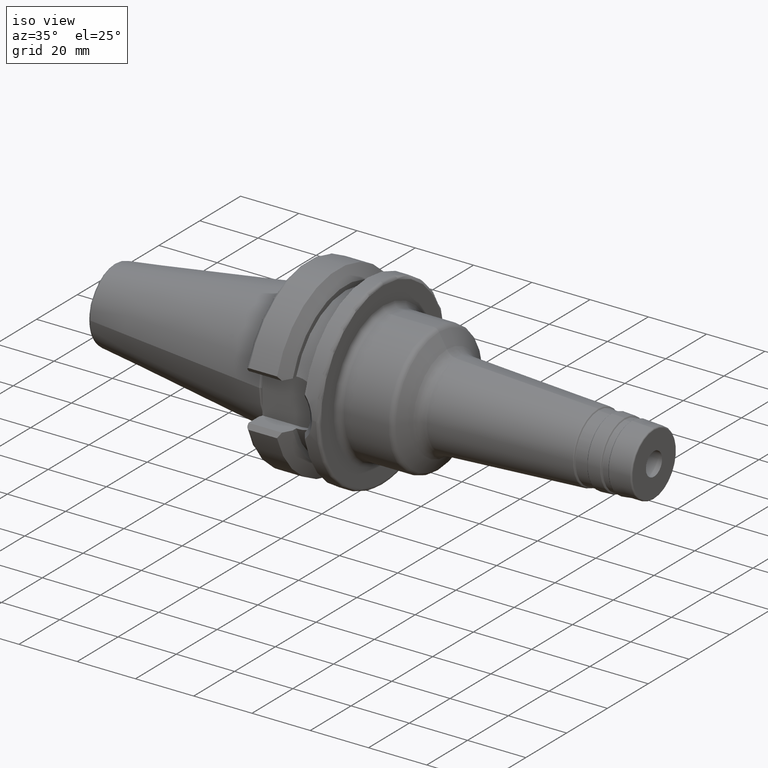
[diagram: clean part render]
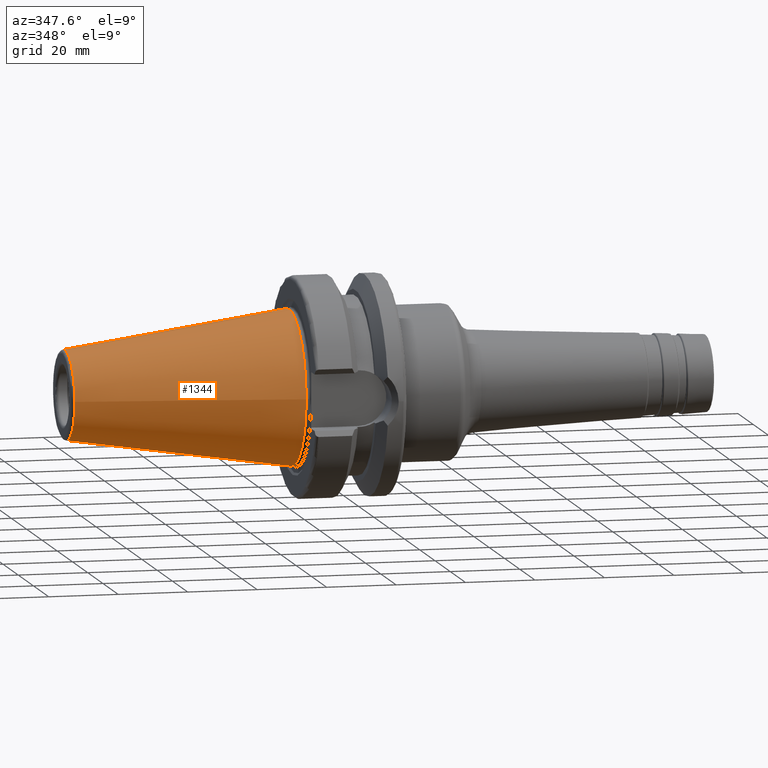
[diagram: tour spotlight — one face highlighted and labeled with its STEP entity id]
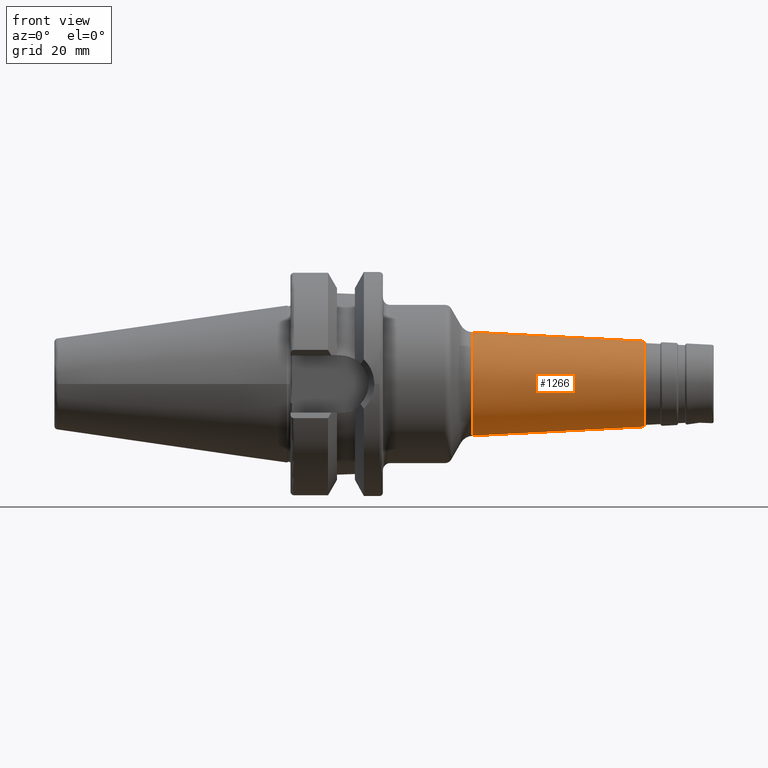
[diagram: tour spotlight — one face highlighted and labeled with its STEP entity id]
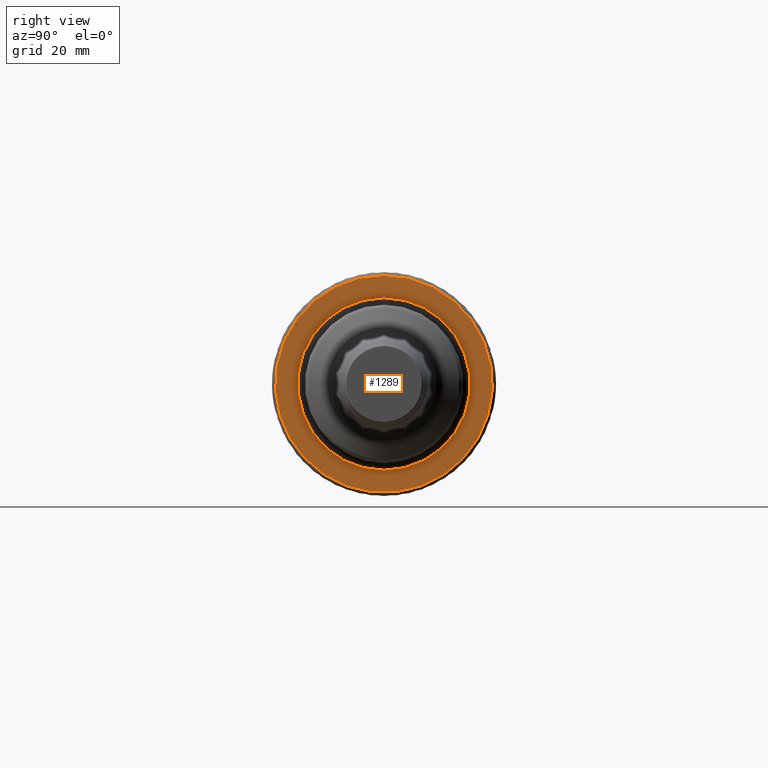
[diagram: tour spotlight — one face highlighted and labeled with its STEP entity id]
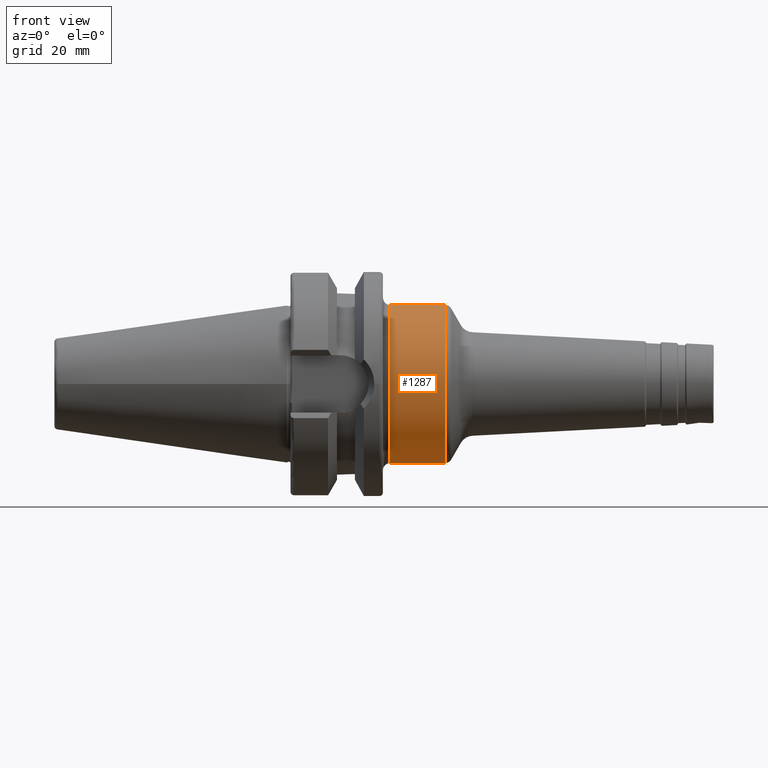
[diagram: tour spotlight — one face highlighted and labeled with its STEP entity id]
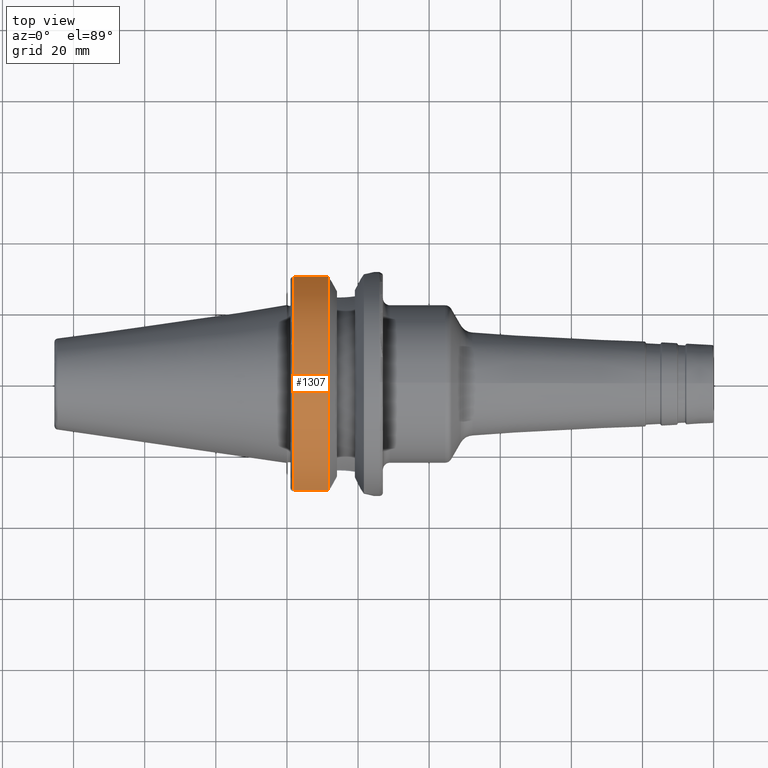
[diagram: tour spotlight — one face highlighted and labeled with its STEP entity id]
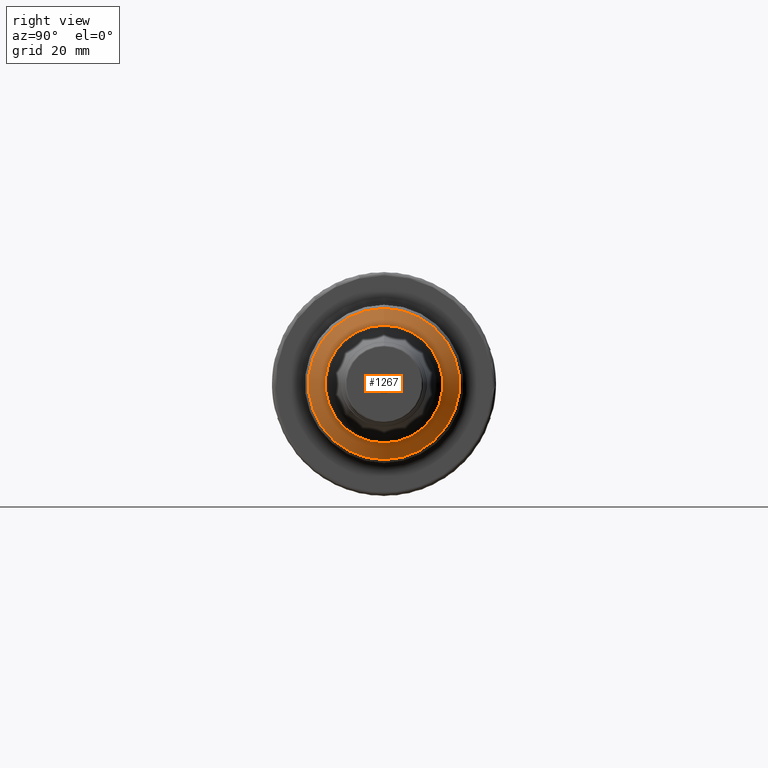
[diagram: tour spotlight — one face highlighted and labeled with its STEP entity id]
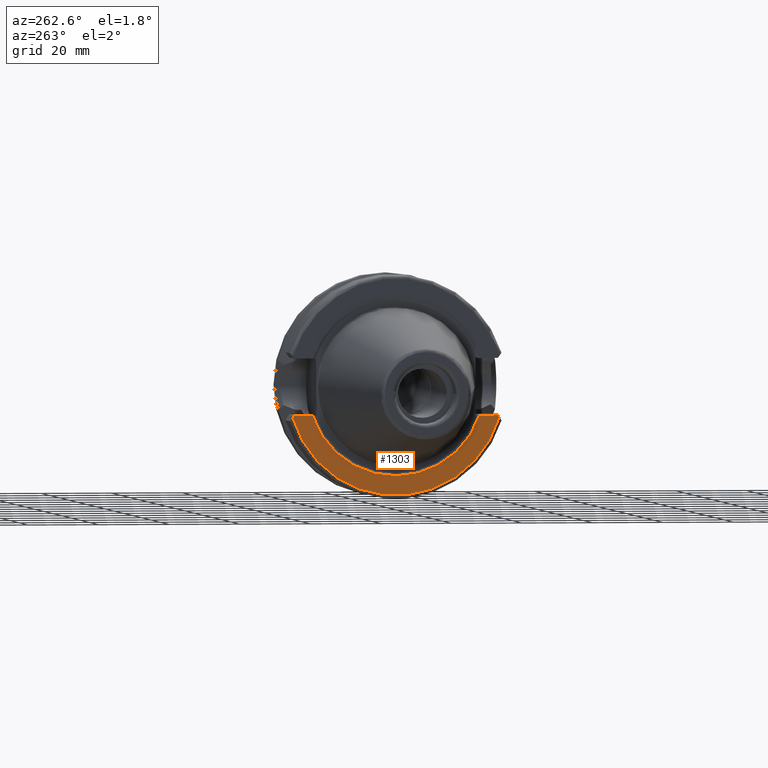
[diagram: tour spotlight — one face highlighted and labeled with its STEP entity id]
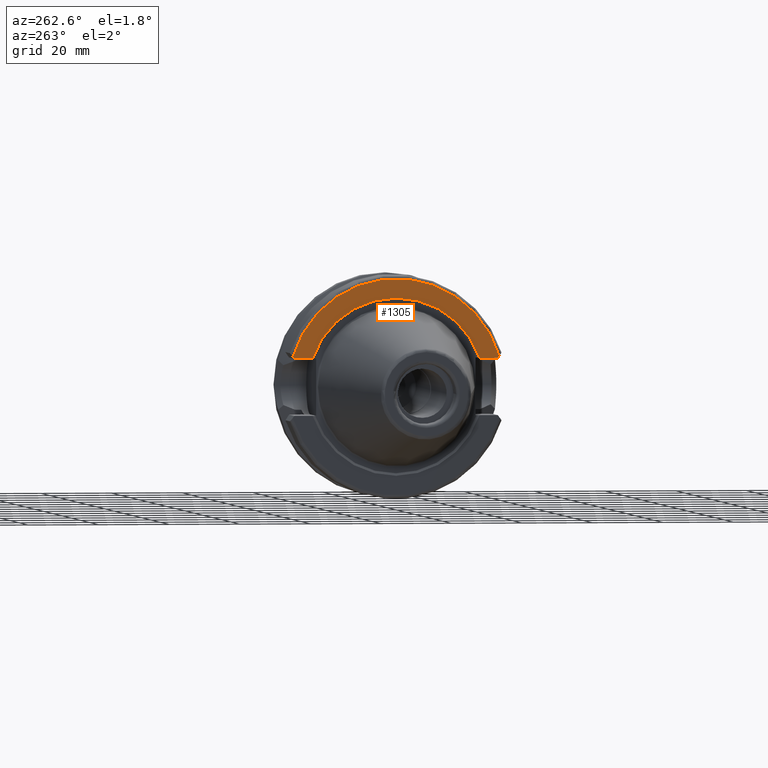
[diagram: tour spotlight — one face highlighted and labeled with its STEP entity id]
A machine part: a face-by-face anatomy tour. The part has 83 B-rep faces; the first image is the clean iso view, then the 8 largest visible faces are spotlighted one at a time (largest first), each with its STEP entity span.

Face 1 — auxiliary view, entity #1344. In plain terms, the highlighted conical surface has half-angle 8.297 deg.
Definition (entity closure, byte-faithful):
#165=LINE('',#2617,#236);
#236=VECTOR('',#1955,17.5186442890469);
#259=CONICAL_SURFACE('',#1538,17.5186442890469,0.144812498238939);
#340=FACE_OUTER_BOUND('',#429,.T.);
#429=EDGE_LOOP('',(#1226,#1227,#1228,#1229,#1230));
#520=CIRCLE('',#1535,12.8122885780937);
#521=CIRCLE('',#1536,12.8122885780937);
#523=CIRCLE('',#1539,22.225);
#644=VERTEX_POINT('',#2609);
#645=VERTEX_POINT('',#2610);
#646=VERTEX_POINT('',#2615);
#838=EDGE_CURVE('',#644,#645,#520,.T.);
#839=EDGE_CURVE('',#645,#644,#521,.T.);
#841=EDGE_CURVE('',#646,#646,#523,.T.);
#842=EDGE_CURVE('',#646,#644,#165,.T.);
#1226=ORIENTED_EDGE('',*,*,#841,.F.);
#1227=ORIENTED_EDGE('',*,*,#842,.T.);
#1228=ORIENTED_EDGE('',*,*,#838,.T.);
#1229=ORIENTED_EDGE('',*,*,#839,.T.);
#1230=ORIENTED_EDGE('',*,*,#842,.F.);
#1344=ADVANCED_FACE('',(#340),#259,.T.);
#1535=AXIS2_PLACEMENT_3D('',#2611,#1945,#1946);
#1536=AXIS2_PLACEMENT_3D('',#2612,#1947,#1948);
#1538=AXIS2_PLACEMENT_3D('',#2614,#1951,#1952);
#1539=AXIS2_PLACEMENT_3D('',#2616,#1953,#1954);
#1945=DIRECTION('center_axis',(1.,0.,0.));
#1946=DIRECTION('ref_axis',(0.,0.,-1.));
#1947=DIRECTION('center_axis',(1.,0.,0.));
#1948=DIRECTION('ref_axis',(0.,0.,-1.));
#1951=DIRECTION('center_axis',(1.,0.,0.));
#1952=DIRECTION('ref_axis',(0.,1.,0.));
#1953=DIRECTION('center_axis',(1.,0.,0.));
#1954=DIRECTION('ref_axis',(0.,0.,-1.));
#1955=DIRECTION('',(-0.989532981063281,0.144306893071729,1.76724974695192E-17));
#2609=CARTESIAN_POINT('',(-64.5443068930717,-12.8122885780937,-1.56905281969147E-15));
#2610=CARTESIAN_POINT('',(-64.5443068930717,-1.56905281969147E-15,12.8122885780937));
#2611=CARTESIAN_POINT('Origin',(-64.5443068930717,0.,0.));
#2612=CARTESIAN_POINT('Origin',(-64.5443068930717,0.,0.));
#2614=CARTESIAN_POINT('Origin',(-32.2721534465359,0.,0.));
#2615=CARTESIAN_POINT('',(4.44089209850063E-15,-22.225,-2.72177751110499E-15));
#2616=CARTESIAN_POINT('Origin',(0.,0.,0.));
#2617=CARTESIAN_POINT('',(-32.2721534465359,-17.5186442890469,-2.14541516539823E-15));

Face 2 — front view, entity #1266. In plain terms, the highlighted conical surface has half-angle 3 deg.
Definition (entity closure, byte-faithful):
#97=LINE('',#1982,#168);
#168=VECTOR('',#1561,13.3386194931702);
#239=CONICAL_SURFACE('',#1375,13.3386194931702,0.0523598775598296);
#262=FACE_OUTER_BOUND('',#345,.T.);
#345=EDGE_LOOP('',(#853,#854,#855,#856));
#435=CIRCLE('',#1374,14.5548801268603);
#436=CIRCLE('',#1376,12.0207809078977);
#529=VERTEX_POINT('',#1976);
#530=VERTEX_POINT('',#1980);
#652=EDGE_CURVE('',#529,#529,#435,.T.);
#653=EDGE_CURVE('',#530,#530,#436,.T.);
#654=EDGE_CURVE('',#530,#529,#97,.T.);
#853=ORIENTED_EDGE('',*,*,#653,.F.);
#854=ORIENTED_EDGE('',*,*,#654,.T.);
#855=ORIENTED_EDGE('',*,*,#652,.F.);
#856=ORIENTED_EDGE('',*,*,#654,.F.);
#1266=ADVANCED_FACE('',(#262),#239,.T.);
#1374=AXIS2_PLACEMENT_3D('',#1978,#1555,#1556);
#1375=AXIS2_PLACEMENT_3D('',#1979,#1557,#1558);
#1376=AXIS2_PLACEMENT_3D('',#1981,#1559,#1560);
#1555=DIRECTION('center_axis',(-1.,0.,0.));
#1556=DIRECTION('ref_axis',(0.,0.,1.));
#1557=DIRECTION('center_axis',(-1.,0.,0.));
#1558=DIRECTION('ref_axis',(0.,0.,-1.));
#1559=DIRECTION('center_axis',(1.,0.,0.));
#1560=DIRECTION('ref_axis',(0.,0.,1.));
#1561=DIRECTION('',(-0.998629534754574,-6.40930612932367E-18,0.0523359562429435));
#1976=CARTESIAN_POINT('',(52.1688463908891,-1.78245873593329E-15,14.5548801268603));
#1978=CARTESIAN_POINT('Origin',(52.1688463908891,-1.78245873593329E-15,
0.));
#1979=CARTESIAN_POINT('Origin',(75.3764817902328,0.,0.));
#1980=CARTESIAN_POINT('',(100.522339968181,-1.47212108621085E-15,12.0207809078977));
#1981=CARTESIAN_POINT('Origin',(100.522339968181,-1.47212108621085E-15,
0.));
#1982=CARTESIAN_POINT('',(75.3764817902328,-1.63350976673554E-15,13.3386194931702));

Face 3 — right view, entity #1289. In plain terms, the highlighted planar face has unit normal (1, 0, 0).
Definition (entity closure, byte-faithful):
#68=FACE_BOUND('',#370,.T.);
#74=PLANE('',#1433);
#285=FACE_OUTER_BOUND('',#369,.T.);
#369=EDGE_LOOP('',(#945));
#370=EDGE_LOOP('',(#946));
#470=CIRCLE('',#1432,24.25);
#471=CIRCLE('',#1434,30.5);
#553=VERTEX_POINT('',#2069);
#554=VERTEX_POINT('',#2073);
#698=EDGE_CURVE('',#553,#553,#470,.T.);
#699=EDGE_CURVE('',#554,#554,#471,.T.);
#945=ORIENTED_EDGE('',*,*,#699,.T.);
#946=ORIENTED_EDGE('',*,*,#698,.F.);
#1289=ADVANCED_FACE('',(#285,#68),#74,.T.);
#1432=AXIS2_PLACEMENT_3D('',#2071,#1682,#1683);
#1433=AXIS2_PLACEMENT_3D('',#2072,#1684,#1685);
#1434=AXIS2_PLACEMENT_3D('',#2074,#1686,#1687);
#1682=DIRECTION('center_axis',(1.,0.,0.));
#1683=DIRECTION('ref_axis',(0.,-1.22464679914735E-16,1.));
#1684=DIRECTION('center_axis',(1.,0.,0.));
#1685=DIRECTION('ref_axis',(0.,0.,-1.));
#1686=DIRECTION('center_axis',(1.,0.,0.));
#1687=DIRECTION('ref_axis',(0.,0.,-1.));
#2069=CARTESIAN_POINT('',(27.,5.93953697586466E-15,-24.25));
#2071=CARTESIAN_POINT('Origin',(27.,0.,0.));
#2072=CARTESIAN_POINT('Origin',(27.,0.,0.));
#2073=CARTESIAN_POINT('',(27.,-3.73517273739943E-15,30.5));
#2074=CARTESIAN_POINT('Origin',(27.,0.,0.));

Face 4 — front view, entity #1287. In plain terms, the highlighted cylindrical surface (bore or boss wall) has radius 22.25 mm, axis along (1, 0, 0).
Definition (entity closure, byte-faithful):
#50=CYLINDRICAL_SURFACE('',#1427,22.25);
#107=LINE('',#2064,#178);
#178=VECTOR('',#1673,22.25);
#283=FACE_OUTER_BOUND('',#367,.T.);
#367=EDGE_LOOP('',(#935,#936,#937,#938,#939));
#466=CIRCLE('',#1426,22.25);
#467=CIRCLE('',#1428,22.25);
#468=CIRCLE('',#1429,22.25);
#550=VERTEX_POINT('',#2059);
#551=VERTEX_POINT('',#2063);
#552=VERTEX_POINT('',#2065);
#693=EDGE_CURVE('',#550,#550,#466,.T.);
#694=EDGE_CURVE('',#550,#551,#107,.T.);
#695=EDGE_CURVE('',#552,#551,#467,.T.);
#696=EDGE_CURVE('',#551,#552,#468,.T.);
#935=ORIENTED_EDGE('',*,*,#693,.F.);
#936=ORIENTED_EDGE('',*,*,#694,.T.);
#937=ORIENTED_EDGE('',*,*,#695,.F.);
#938=ORIENTED_EDGE('',*,*,#696,.F.);
#939=ORIENTED_EDGE('',*,*,#694,.F.);
#1287=ADVANCED_FACE('',(#283),#50,.T.);
#1426=AXIS2_PLACEMENT_3D('',#2061,#1669,#1670);
#1427=AXIS2_PLACEMENT_3D('',#2062,#1671,#1672);
#1428=AXIS2_PLACEMENT_3D('',#2066,#1674,#1675);
#1429=AXIS2_PLACEMENT_3D('',#2067,#1676,#1677);
#1669=DIRECTION('center_axis',(1.,0.,0.));
#1670=DIRECTION('ref_axis',(0.,1.22464679914735E-16,1.));
#1671=DIRECTION('center_axis',(1.,0.,0.));
#1672=DIRECTION('ref_axis',(0.,0.,-1.));
#1673=DIRECTION('',(-1.,0.,0.));
#1674=DIRECTION('center_axis',(-1.,0.,0.));
#1675=DIRECTION('ref_axis',(0.,-1.22464679914735E-16,1.));
#1676=DIRECTION('center_axis',(-1.,0.,0.));
#1677=DIRECTION('ref_axis',(0.,-1.22464679914735E-16,1.));
#2059=CARTESIAN_POINT('',(44.4681441166061,-2.72483912810286E-15,22.25));
#2061=CARTESIAN_POINT('Origin',(44.4681441166061,0.,0.));
#2062=CARTESIAN_POINT('Origin',(36.3114223274927,0.,0.));
#2063=CARTESIAN_POINT('',(29.,-2.72483912810286E-15,22.25));
#2064=CARTESIAN_POINT('',(36.3114223274927,-2.72483912810286E-15,22.25));
#2065=CARTESIAN_POINT('',(29.,0.,-22.25));
#2066=CARTESIAN_POINT('Origin',(29.,0.,0.));
#2067=CARTESIAN_POINT('Origin',(29.,0.,0.));

Face 5 — top view, entity #1307. In plain terms, the highlighted cylindrical surface (partial cylindrical patch) has radius 31.5 mm, axis along (1, 0, 0).
Definition (entity closure, byte-faithful):
#57=CYLINDRICAL_SURFACE('',#1471,31.5);
#121=LINE('',#2297,#192);
#127=LINE('',#2338,#198);
#192=VECTOR('',#1763,10.);
#198=VECTOR('',#1783,10.);
#303=FACE_OUTER_BOUND('',#390,.T.);
#390=EDGE_LOOP('',(#1027,#1028,#1029,#1030));
#491=CIRCLE('',#1470,31.5);
#492=CIRCLE('',#1472,31.5000000000001);
#587=VERTEX_POINT('',#2292);
#588=VERTEX_POINT('',#2296);
#595=VERTEX_POINT('',#2323);
#596=VERTEX_POINT('',#2336);
#743=EDGE_CURVE('',#587,#588,#121,.T.);
#752=EDGE_CURVE('',#595,#588,#491,.T.);
#754=EDGE_CURVE('',#596,#587,#492,.T.);
#755=EDGE_CURVE('',#595,#596,#127,.T.);
#1027=ORIENTED_EDGE('',*,*,#743,.F.);
#1028=ORIENTED_EDGE('',*,*,#754,.F.);
#1029=ORIENTED_EDGE('',*,*,#755,.F.);
#1030=ORIENTED_EDGE('',*,*,#752,.T.);
#1307=ADVANCED_FACE('',(#303),#57,.T.);
#1470=AXIS2_PLACEMENT_3D('',#2324,#1777,#1778);
#1471=AXIS2_PLACEMENT_3D('',#2335,#1779,#1780);
#1472=AXIS2_PLACEMENT_3D('',#2337,#1781,#1782);
#1763=DIRECTION('',(-1.,0.,0.));
#1777=DIRECTION('center_axis',(1.,0.,0.));
#1778=DIRECTION('ref_axis',(0.,0.,-1.));
#1779=DIRECTION('center_axis',(1.,0.,0.));
#1780=DIRECTION('ref_axis',(0.,1.,0.));
#1781=DIRECTION('center_axis',(1.,0.,0.));
#1782=DIRECTION('ref_axis',(0.,0.,-1.));
#1783=DIRECTION('',(1.,0.,0.));
#2292=CARTESIAN_POINT('',(11.5690363073381,-30.0059801089944,9.58598757033588));
#2296=CARTESIAN_POINT('',(1.99999999999999,-30.0059801089944,9.58598757033586));
#2297=CARTESIAN_POINT('',(6.78451815366905,-30.0059801089944,9.58598757033587));
#2323=CARTESIAN_POINT('',(1.99999999999999,30.0059801089944,9.58598757033586));
#2324=CARTESIAN_POINT('Origin',(1.99999999999999,0.,0.));
#2335=CARTESIAN_POINT('Origin',(6.78451815366905,0.,0.));
#2336=CARTESIAN_POINT('',(11.5690363073381,30.0059801089944,9.58598757033588));
#2337=CARTESIAN_POINT('Origin',(11.5690363073381,0.,0.));
#2338=CARTESIAN_POINT('',(6.78451815366905,30.0059801089944,9.58598757033587));

Face 6 — right view, entity #1267. In plain terms, the highlighted conical surface has half-angle 60 deg.
Definition (entity closure, byte-faithful):
#98=LINE('',#1985,#169);
#169=VECTOR('',#1564,18.4592722749064);
#240=CONICAL_SURFACE('',#1377,18.4592722749064,1.0471975511966);
#263=FACE_OUTER_BOUND('',#346,.T.);
#346=EDGE_LOOP('',(#857,#858,#859,#860));
#433=CIRCLE('',#1372,16.5493982658786);
#437=CIRCLE('',#1378,21.25);
#528=VERTEX_POINT('',#1974);
#531=VERTEX_POINT('',#1984);
#650=EDGE_CURVE('',#528,#528,#433,.T.);
#655=EDGE_CURVE('',#528,#531,#98,.T.);
#656=EDGE_CURVE('',#531,#531,#437,.T.);
#857=ORIENTED_EDGE('',*,*,#650,.F.);
#858=ORIENTED_EDGE('',*,*,#655,.T.);
#859=ORIENTED_EDGE('',*,*,#656,.F.);
#860=ORIENTED_EDGE('',*,*,#655,.F.);
#1267=ADVANCED_FACE('',(#263),#240,.T.);
#1372=AXIS2_PLACEMENT_3D('',#1975,#1551,#1552);
#1377=AXIS2_PLACEMENT_3D('',#1983,#1562,#1563);
#1378=AXIS2_PLACEMENT_3D('',#1986,#1565,#1566);
#1551=DIRECTION('center_axis',(1.,0.,0.));
#1552=DIRECTION('ref_axis',(0.,0.,1.));
#1562=DIRECTION('center_axis',(-1.,0.,0.));
#1563=DIRECTION('ref_axis',(0.,0.,-1.));
#1564=DIRECTION('',(-0.5,-1.06057523872491E-16,0.866025403784439));
#1565=DIRECTION('center_axis',(-1.,0.,0.));
#1566=DIRECTION('ref_axis',(0.,0.,1.));
#1974=CARTESIAN_POINT('',(48.9140886007231,-2.0267167614123E-15,16.5493982658786));
#1975=CARTESIAN_POINT('Origin',(48.9140886007231,-2.0267167614123E-15,0.));
#1983=CARTESIAN_POINT('Origin',(47.8114223274927,0.,0.));
#1984=CARTESIAN_POINT('',(46.2001949241749,-2.60237444818813E-15,21.25));
#1985=CARTESIAN_POINT('',(47.8114223274927,-2.26060887060536E-15,18.4592722749064));
#1986=CARTESIAN_POINT('Origin',(46.2001949241749,-2.60237444818813E-15,
0.));

Face 7 — auxiliary view, entity #1303. In plain terms, the highlighted planar face has unit normal (-1, 0, 0).
Definition (entity closure, byte-faithful):
#78=PLANE('',#1463);
#116=LINE('',#2262,#187);
#118=LINE('',#2284,#189);
#119=LINE('',#2288,#190);
#120=LINE('',#2289,#191);
#187=VECTOR('',#1742,10.);
#189=VECTOR('',#1756,10.);
#190=VECTOR('',#1759,10.);
#191=VECTOR('',#1760,10.);
#299=FACE_OUTER_BOUND('',#386,.T.);
#386=EDGE_LOOP('',(#1006,#1007,#1008,#1009,#1010,#1011));
#487=CIRCLE('',#1462,30.5);
#488=CIRCLE('',#1464,25.);
#575=VERTEX_POINT('',#2242);
#579=VERTEX_POINT('',#2260);
#582=VERTEX_POINT('',#2270);
#583=VERTEX_POINT('',#2283);
#584=VERTEX_POINT('',#2285);
#585=VERTEX_POINT('',#2287);
#732=EDGE_CURVE('',#579,#575,#116,.T.);
#736=EDGE_CURVE('',#575,#582,#487,.T.);
#738=EDGE_CURVE('',#579,#583,#118,.T.);
#739=EDGE_CURVE('',#583,#584,#488,.T.);
#740=EDGE_CURVE('',#584,#585,#119,.T.);
#741=EDGE_CURVE('',#582,#585,#120,.T.);
#1006=ORIENTED_EDGE('',*,*,#732,.F.);
#1007=ORIENTED_EDGE('',*,*,#738,.T.);
#1008=ORIENTED_EDGE('',*,*,#739,.T.);
#1009=ORIENTED_EDGE('',*,*,#740,.T.);
#1010=ORIENTED_EDGE('',*,*,#741,.F.);
#1011=ORIENTED_EDGE('',*,*,#736,.F.);
#1303=ADVANCED_FACE('',(#299),#78,.T.);
#1462=AXIS2_PLACEMENT_3D('',#2271,#1752,#1753);
#1463=AXIS2_PLACEMENT_3D('',#2282,#1754,#1755);
#1464=AXIS2_PLACEMENT_3D('',#2286,#1757,#1758);
#1742=DIRECTION('',(0.,-0.599988902555658,-0.800008322962991));
#1752=DIRECTION('center_axis',(1.,0.,0.));
#1753=DIRECTION('ref_axis',(0.,0.,-1.));
#1754=DIRECTION('center_axis',(-1.,0.,0.));
#1755=DIRECTION('ref_axis',(0.,0.,1.));
#1756=DIRECTION('',(0.,1.,0.));
#1757=DIRECTION('center_axis',(1.,0.,0.));
#1758=DIRECTION('ref_axis',(0.,0.,-1.));
#1759=DIRECTION('',(0.,1.,0.));
#1760=DIRECTION('',(0.,-0.599988902555658,0.800008322962991));
#2242=CARTESIAN_POINT('',(0.999999999999992,-29.2635810473993,-8.59609354778619));
#2260=CARTESIAN_POINT('',(0.999999999999993,-28.8540227227866,-8.05));
#2262=CARTESIAN_POINT('',(0.999999999999993,-16.5266988165472,8.38690688751911));
#2270=CARTESIAN_POINT('',(0.999999999999992,29.2635810473993,-8.59609354778619));
#2271=CARTESIAN_POINT('Origin',(0.999999999999992,0.,0.));
#2282=CARTESIAN_POINT('Origin',(0.999999999999993,30.5,0.));
#2283=CARTESIAN_POINT('',(1.,-23.6684917136686,-8.05));
#2284=CARTESIAN_POINT('',(0.999999999999993,3.95,-8.05));
#2285=CARTESIAN_POINT('',(1.,23.6684917136686,-8.05));
#2286=CARTESIAN_POINT('Origin',(1.,0.,0.));
#2287=CARTESIAN_POINT('',(0.999999999999993,28.8540227227866,-8.05));
#2288=CARTESIAN_POINT('',(0.999999999999993,26.55,-8.05));
#2289=CARTESIAN_POINT('',(0.999999999999993,27.5062926538405,-6.25297464224459));

Face 8 — auxiliary view, entity #1305. In plain terms, the highlighted planar face has unit normal (-1, 0, 0).
Definition (entity closure, byte-faithful):
#80=PLANE('',#1466);
#122=LINE('',#2310,#193);
#124=LINE('',#2316,#195);
#125=LINE('',#2318,#196);
#126=LINE('',#2321,#197);
#193=VECTOR('',#1764,10.);
#195=VECTOR('',#1770,10.);
#196=VECTOR('',#1771,10.);
#197=VECTOR('',#1774,10.);
#301=FACE_OUTER_BOUND('',#388,.T.);
#388=EDGE_LOOP('',(#1017,#1018,#1019,#1020,#1021,#1022));
#489=CIRCLE('',#1467,30.5);
#490=CIRCLE('',#1468,25.);
#589=VERTEX_POINT('',#2298);
#590=VERTEX_POINT('',#2309);
#591=VERTEX_POINT('',#2313);
#592=VERTEX_POINT('',#2315);
#593=VERTEX_POINT('',#2317);
#594=VERTEX_POINT('',#2319);
#745=EDGE_CURVE('',#589,#590,#122,.T.);
#747=EDGE_CURVE('',#591,#589,#489,.T.);
#748=EDGE_CURVE('',#592,#591,#124,.T.);
#749=EDGE_CURVE('',#592,#593,#125,.T.);
#750=EDGE_CURVE('',#593,#594,#490,.T.);
#751=EDGE_CURVE('',#594,#590,#126,.T.);
#1017=ORIENTED_EDGE('',*,*,#745,.F.);
#1018=ORIENTED_EDGE('',*,*,#747,.F.);
#1019=ORIENTED_EDGE('',*,*,#748,.F.);
#1020=ORIENTED_EDGE('',*,*,#749,.T.);
#1021=ORIENTED_EDGE('',*,*,#750,.T.);
#1022=ORIENTED_EDGE('',*,*,#751,.T.);
#1305=ADVANCED_FACE('',(#301),#80,.T.);
#1466=AXIS2_PLACEMENT_3D('',#2312,#1766,#1767);
#1467=AXIS2_PLACEMENT_3D('',#2314,#1768,#1769);
#1468=AXIS2_PLACEMENT_3D('',#2320,#1772,#1773);
#1764=DIRECTION('',(0.,0.599988902555658,-0.800008322962991));
#1766=DIRECTION('center_axis',(-1.,0.,0.));
#1767=DIRECTION('ref_axis',(0.,0.,1.));
#1768=DIRECTION('center_axis',(1.,0.,0.));
#1769=DIRECTION('ref_axis',(0.,0.,-1.));
#1770=DIRECTION('',(0.,0.599988902555658,0.800008322962991));
#1771=DIRECTION('',(0.,-1.,0.));
#1772=DIRECTION('center_axis',(1.,0.,0.));
#1773=DIRECTION('ref_axis',(0.,0.,-1.));
#1774=DIRECTION('',(0.,-1.,0.));
#2298=CARTESIAN_POINT('',(0.999999999999992,-29.2635810473993,8.59609354778619));
#2309=CARTESIAN_POINT('',(0.999999999999993,-28.8540227227866,8.05));
#2310=CARTESIAN_POINT('',(0.999999999999992,-16.5266988165472,-8.38690688751911));
#2312=CARTESIAN_POINT('Origin',(0.999999999999993,30.5,0.));
#2313=CARTESIAN_POINT('',(0.999999999999992,29.2635810473993,8.59609354778619));
#2314=CARTESIAN_POINT('Origin',(0.999999999999992,0.,0.));
#2315=CARTESIAN_POINT('',(0.999999999999993,28.8540227227866,8.05));
#2316=CARTESIAN_POINT('',(0.999999999999992,27.5062926538405,6.25297464224459));
#2317=CARTESIAN_POINT('',(1.00000000000002,23.6684917136686,8.05));
#2318=CARTESIAN_POINT('',(0.999999999999993,26.55,8.05));
#2319=CARTESIAN_POINT('',(1.00000000000002,-23.6684917136686,8.05));
#2320=CARTESIAN_POINT('Origin',(1.,0.,0.));
#2321=CARTESIAN_POINT('',(0.999999999999993,3.95,8.05));